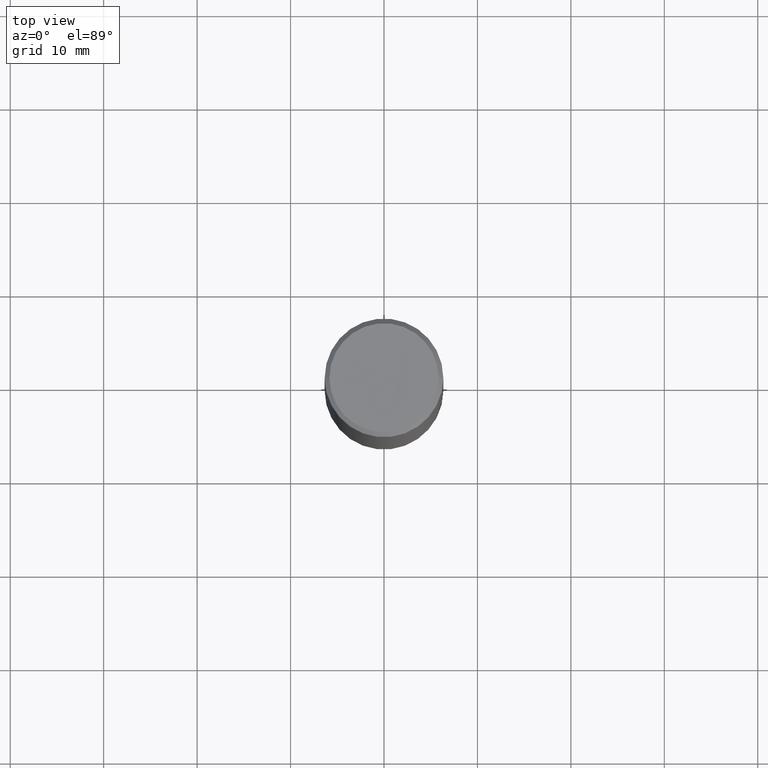
[diagram: clean part render]
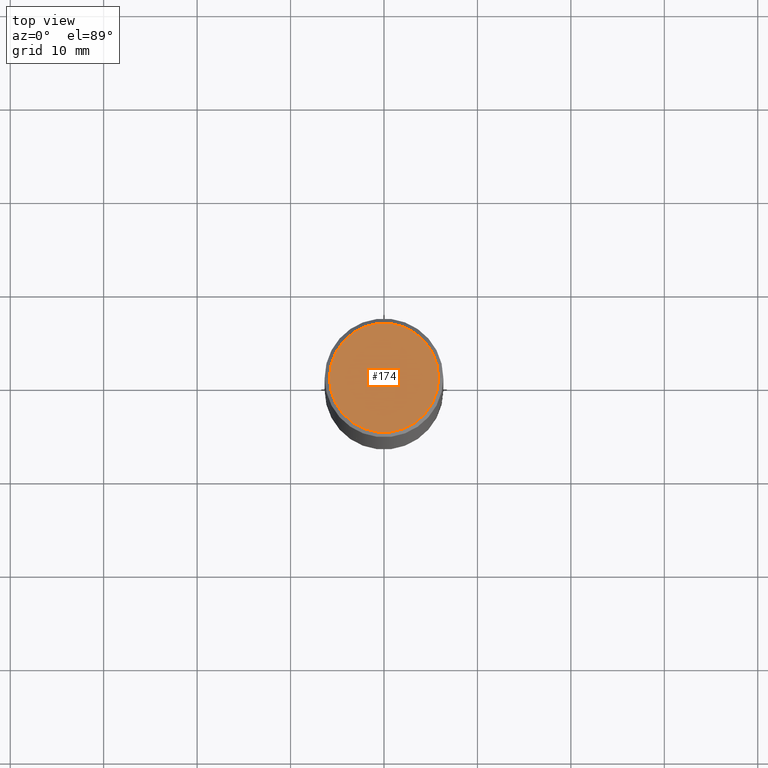
[diagram: same view with one face highlighted and labeled with its STEP entity id]
A machine part, top view. The second image highlights one B-rep face of the part: STEP entity #174.
In plain terms, the highlighted planar face has unit normal (0, -0, -1).
Its self-contained STEP definition (entity closure, byte-faithful):
#6 = DIRECTION ( 'NONE',  ( -2.445468806185136597E-29, 3.491481338843145583E-15, 1.000000000000000000 ) ) ;
#34 = CIRCLE ( 'NONE', #80, 0.2299999999999996769 ) ;
#35 = DIRECTION ( 'NONE',  ( 1.000000000000000000, -6.982962677686266711E-15, 4.875813741439106500E-29 ) ) ;
#60 = CARTESIAN_POINT ( 'NONE',  ( 8.350811314681758556E-46, -1.192274536304357760E-31, -3.414809992080329023E-17 ) ) ;
#67 = EDGE_LOOP ( 'NONE', ( #304, #245 ) ) ;
#80 = AXIS2_PLACEMENT_3D ( 'NONE', #60, #323, #117 ) ;
#83 = CARTESIAN_POINT ( 'NONE',  ( -0.2299999999999996769, 1.640996229256269758E-15, -3.414809992081464243E-17 ) ) ;
#107 = CARTESIAN_POINT ( 'NONE',  ( 0.2299999999999996769, -1.681434332853596842E-15, -3.414809992079179628E-17 ) ) ;
#117 = DIRECTION ( 'NONE',  ( 1.000000000000000000, -6.982962677686266711E-15, 4.875813741439106500E-29 ) ) ;
#131 = AXIS2_PLACEMENT_3D ( 'NONE', #140, #229, #169 ) ;
#139 = EDGE_CURVE ( 'NONE', #303, #157, #163, .T. ) ;
#140 = CARTESIAN_POINT ( 'NONE',  ( 1.606081415867838898E-15, 0.2299999999999996769, -8.201147578943240153E-16 ) ) ;
#157 = VERTEX_POINT ( 'NONE', #107 ) ;
#163 = CIRCLE ( 'NONE', #268, 0.2299999999999996769 ) ;
#169 = DIRECTION ( 'NONE',  ( -1.000000000000000000, 6.982962677686265922E-15, -4.876176775795935793E-29 ) ) ;
#174 = ADVANCED_FACE ( 'NONE', ( #259 ), #231, .F. ) ;
#198 = CARTESIAN_POINT ( 'NONE',  ( 8.350811314681758556E-46, -1.192274536304357760E-31, -3.414809992080329023E-17 ) ) ;
#209 = EDGE_CURVE ( 'NONE', #157, #303, #34, .T. ) ;
#229 = DIRECTION ( 'NONE',  ( 2.438088387897960049E-29, -3.491481338843145188E-15, -1.000000000000000000 ) ) ;
#231 = PLANE ( 'NONE',  #131 ) ;
#245 = ORIENTED_EDGE ( 'NONE', *, *, #209, .T. ) ;
#259 = FACE_OUTER_BOUND ( 'NONE', #67, .T. ) ;
#268 = AXIS2_PLACEMENT_3D ( 'NONE', #198, #6, #35 ) ;
#303 = VERTEX_POINT ( 'NONE', #83 ) ;
#304 = ORIENTED_EDGE ( 'NONE', *, *, #139, .T. ) ;
#323 = DIRECTION ( 'NONE',  ( -2.445468806185136597E-29, 3.491481338843145583E-15, 1.000000000000000000 ) ) ;